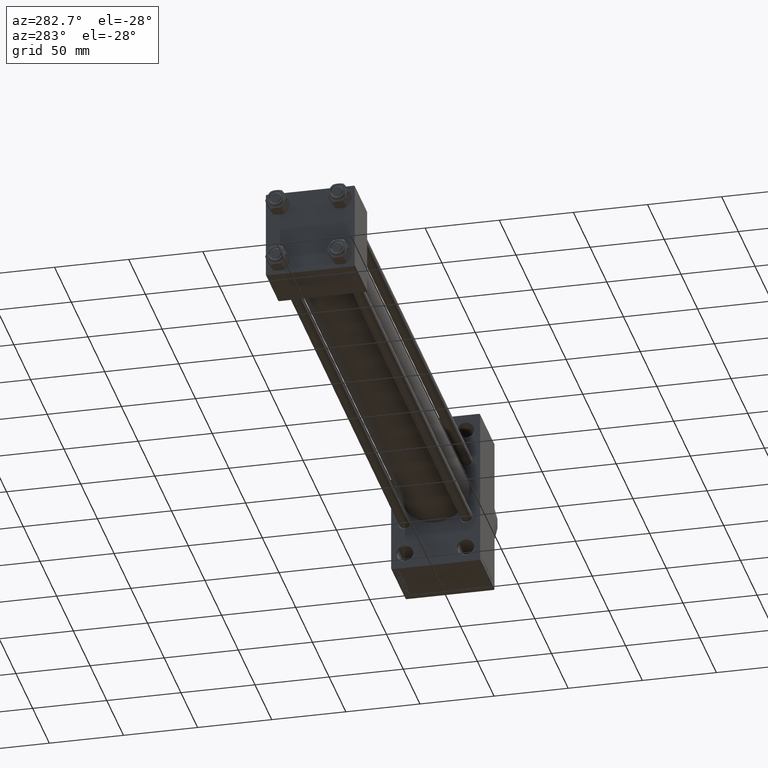
[diagram: clean part render]
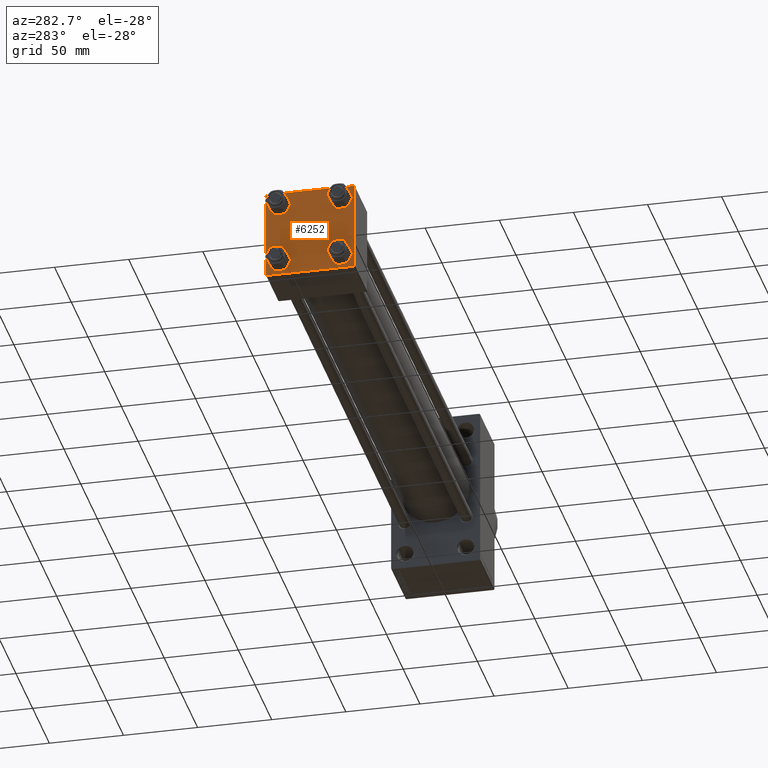
[diagram: same view with one face highlighted and labeled with its STEP entity id]
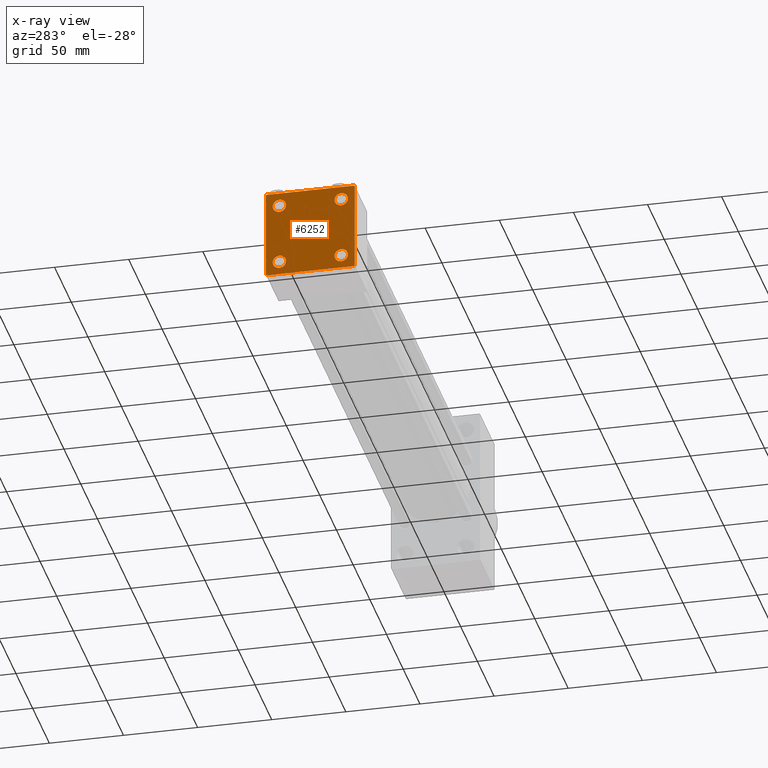
[diagram: x-ray of the same camera — body ghosted, the highlighted face saturated]
A machine part, auxiliary view. The second image highlights one B-rep face of the part: STEP entity #6252.
The next image is the same camera in x-ray: the body ghosted, the highlighted face saturated — about 0% of this face is hidden behind the body in this view.
In plain terms, the highlighted planar face has unit normal (-1, 0, 0).
Its self-contained STEP definition (entity closure, byte-faithful):
#474 = EDGE_CURVE ( 'NONE', #13095, #19065, #24075, .T. ) ;
#739 = FACE_BOUND ( 'NONE', #19890, .T. ) ;
#1247 = CARTESIAN_POINT ( 'NONE',  ( 0.000000000000000000, 29.99999999999999289, -29.50000000000000000 ) ) ;
#1392 = CARTESIAN_POINT ( 'NONE',  ( -0.000000000000000000, -29.74999999999999645, 29.74999999999999645 ) ) ;
#1527 = DIRECTION ( 'NONE',  ( 0.000000000000000000, 0.000000000000000000, 1.000000000000000000 ) ) ;
#1727 = VERTEX_POINT ( 'NONE', #40711 ) ;
#2076 = CARTESIAN_POINT ( 'NONE',  ( 0.000000000000000000, 20.84999999999999787, 25.35000000000001918 ) ) ;
#2084 = AXIS2_PLACEMENT_3D ( 'NONE', #18621, #15040, #11898 ) ;
#2979 = VECTOR ( 'NONE', #21318, 1000.000000000000000 ) ;
#3139 = VERTEX_POINT ( 'NONE', #18562 ) ;
#4204 = ORIENTED_EDGE ( 'NONE', *, *, #38496, .F. ) ;
#4324 = VERTEX_POINT ( 'NONE', #21632 ) ;
#4328 = EDGE_CURVE ( 'NONE', #28831, #29947, #43711, .T. ) ;
#4347 = DIRECTION ( 'NONE',  ( 0.000000000000000000, 0.000000000000000000, 1.000000000000000000 ) ) ;
#4837 = VERTEX_POINT ( 'NONE', #26815 ) ;
#5253 = DIRECTION ( 'NONE',  ( 0.000000000000000000, 0.7071067811865474617, -0.7071067811865474617 ) ) ;
#5520 = AXIS2_PLACEMENT_3D ( 'NONE', #8973, #41577, #1527 ) ;
#5568 = EDGE_CURVE ( 'NONE', #35027, #8611, #24133, .T. ) ;
#5754 = LINE ( 'NONE', #45317, #11878 ) ;
#5983 = CIRCLE ( 'NONE', #9006, 4.500000000000017764 ) ;
#6252 = ADVANCED_FACE ( 'NONE', ( #37199, #33598, #739, #15396, #29990 ), #44633, .T. ) ;
#7420 = CARTESIAN_POINT ( 'NONE',  ( 0.000000000000000000, 29.74999999999957723, -29.75000000000040501 ) ) ;
#7497 = DIRECTION ( 'NONE',  ( 1.000000000000000000, -0.000000000000000000, 0.000000000000000000 ) ) ;
#7696 = CARTESIAN_POINT ( 'NONE',  ( 0.000000000000000000, -20.84999999999999076, -25.35000000000002274 ) ) ;
#7869 = CARTESIAN_POINT ( 'NONE',  ( 0.000000000000000000, -30.00000000000000000, 29.99999999999999289 ) ) ;
#8016 = CIRCLE ( 'NONE', #30167, 4.500000000000017764 ) ;
#8198 = DIRECTION ( 'NONE',  ( -0.000000000000000000, 0.000000000000000000, 1.000000000000000000 ) ) ;
#8611 = VERTEX_POINT ( 'NONE', #17765 ) ;
#8973 = CARTESIAN_POINT ( 'NONE',  ( 0.000000000000000000, -20.84999999999999076, -20.85000000000000497 ) ) ;
#9006 = AXIS2_PLACEMENT_3D ( 'NONE', #44881, #26650, #26406 ) ;
#9096 = ORIENTED_EDGE ( 'NONE', *, *, #24281, .T. ) ;
#9265 = EDGE_CURVE ( 'NONE', #4837, #4324, #25087, .T. ) ;
#9669 = VERTEX_POINT ( 'NONE', #34572 ) ;
#11878 = VECTOR ( 'NONE', #30907, 1000.000000000000000 ) ;
#11898 = DIRECTION ( 'NONE',  ( 0.000000000000000000, 0.000000000000000000, 1.000000000000000000 ) ) ;
#12021 = DIRECTION ( 'NONE',  ( 1.000000000000000000, -0.000000000000000000, 0.000000000000000000 ) ) ;
#12249 = ORIENTED_EDGE ( 'NONE', *, *, #28912, .T. ) ;
#12278 = VECTOR ( 'NONE', #5253, 1000.000000000000114 ) ;
#13095 = VERTEX_POINT ( 'NONE', #29996 ) ;
#13445 = ORIENTED_EDGE ( 'NONE', *, *, #38589, .T. ) ;
#13853 = ORIENTED_EDGE ( 'NONE', *, *, #19632, .T. ) ;
#14068 = DIRECTION ( 'NONE',  ( 0.000000000000000000, -0.7071067811865474617, 0.7071067811865474617 ) ) ;
#14668 = ORIENTED_EDGE ( 'NONE', *, *, #47225, .T. ) ;
#14916 = CARTESIAN_POINT ( 'NONE',  ( 0.000000000000000000, 29.99999999999999289, 30.00000000000000000 ) ) ;
#15009 = CARTESIAN_POINT ( 'NONE',  ( 0.000000000000000000, 20.84999999999999787, -20.85000000000000142 ) ) ;
#15040 = DIRECTION ( 'NONE',  ( 1.000000000000000000, -0.000000000000000000, 0.000000000000000000 ) ) ;
#15071 = DIRECTION ( 'NONE',  ( 0.000000000000000000, 0.000000000000000000, -1.000000000000000000 ) ) ;
#15153 = CARTESIAN_POINT ( 'NONE',  ( 0.000000000000000000, 20.84999999999999787, 20.85000000000000142 ) ) ;
#15396 = FACE_BOUND ( 'NONE', #45162, .T. ) ;
#15956 = ORIENTED_EDGE ( 'NONE', *, *, #37825, .F. ) ;
#16785 = ORIENTED_EDGE ( 'NONE', *, *, #4328, .T. ) ;
#17427 = CARTESIAN_POINT ( 'NONE',  ( 0.000000000000000000, -29.75000000000001066, -29.75000000000001066 ) ) ;
#17765 = CARTESIAN_POINT ( 'NONE',  ( 0.000000000000000000, 20.84999999999999787, -16.34999999999998366 ) ) ;
#18456 = ORIENTED_EDGE ( 'NONE', *, *, #31777, .T. ) ;
#18562 = CARTESIAN_POINT ( 'NONE',  ( 0.000000000000000000, -20.84999999999999076, 16.34999999999998721 ) ) ;
#18621 = CARTESIAN_POINT ( 'NONE',  ( 0.000000000000000000, -20.84999999999999076, 20.85000000000000497 ) ) ;
#19065 = VERTEX_POINT ( 'NONE', #7696 ) ;
#19424 = ORIENTED_EDGE ( 'NONE', *, *, #5568, .T. ) ;
#19444 = AXIS2_PLACEMENT_3D ( 'NONE', #28212, #31789, #38760 ) ;
#19632 = EDGE_CURVE ( 'NONE', #19065, #13095, #26181, .T. ) ;
#19890 = EDGE_LOOP ( 'NONE', ( #12249, #19424 ) ) ;
#20905 = CARTESIAN_POINT ( 'NONE',  ( 0.000000000000000000, -30.00000000000000000, 29.49999999999999289 ) ) ;
#21318 = DIRECTION ( 'NONE',  ( 0.000000000000000000, -1.000000000000000000, -1.156482317317871725E-16 ) ) ;
#21632 = CARTESIAN_POINT ( 'NONE',  ( 0.000000000000000000, -30.00000000000000000, -29.50000000000001776 ) ) ;
#23622 = VECTOR ( 'NONE', #15071, 1000.000000000000000 ) ;
#23876 = VERTEX_POINT ( 'NONE', #45166 ) ;
#24075 = CIRCLE ( 'NONE', #19444, 4.500000000000017764 ) ;
#24133 = CIRCLE ( 'NONE', #31784, 4.500000000000017764 ) ;
#24281 = EDGE_CURVE ( 'NONE', #39494, #28691, #8016, .T. ) ;
#25087 = LINE ( 'NONE', #17427, #41852 ) ;
#25386 = DIRECTION ( 'NONE',  ( -0.000000000000000000, -0.7071067811865574537, -0.7071067811865376918 ) ) ;
#25605 = EDGE_LOOP ( 'NONE', ( #34767, #35656 ) ) ;
#26099 = CARTESIAN_POINT ( 'NONE',  ( 0.000000000000000000, 20.84999999999999787, -20.85000000000000142 ) ) ;
#26135 = EDGE_CURVE ( 'NONE', #1727, #4837, #5754, .T. ) ;
#26181 = CIRCLE ( 'NONE', #5520, 4.500000000000017764 ) ;
#26383 = DIRECTION ( 'NONE',  ( 0.000000000000000000, 0.000000000000000000, 1.000000000000000000 ) ) ;
#26406 = DIRECTION ( 'NONE',  ( 0.000000000000000000, 0.000000000000000000, 1.000000000000000000 ) ) ;
#26488 = DIRECTION ( 'NONE',  ( 0.000000000000000000, 0.000000000000000000, 1.000000000000000000 ) ) ;
#26650 = DIRECTION ( 'NONE',  ( 1.000000000000000000, -0.000000000000000000, 0.000000000000000000 ) ) ;
#26815 = CARTESIAN_POINT ( 'NONE',  ( 0.000000000000000000, -29.50000000000000000, -30.00000000000000711 ) ) ;
#27766 = VERTEX_POINT ( 'NONE', #32803 ) ;
#28037 = VECTOR ( 'NONE', #36260, 1000.000000000000000 ) ;
#28093 = ORIENTED_EDGE ( 'NONE', *, *, #474, .T. ) ;
#28212 = CARTESIAN_POINT ( 'NONE',  ( 0.000000000000000000, -20.84999999999999076, -20.85000000000000497 ) ) ;
#28642 = ORIENTED_EDGE ( 'NONE', *, *, #9265, .T. ) ;
#28691 = VERTEX_POINT ( 'NONE', #2076 ) ;
#28831 = VERTEX_POINT ( 'NONE', #29372 ) ;
#28912 = EDGE_CURVE ( 'NONE', #8611, #35027, #38798, .T. ) ;
#29311 = VERTEX_POINT ( 'NONE', #20905 ) ;
#29372 = CARTESIAN_POINT ( 'NONE',  ( 0.000000000000000000, 29.99999999999999289, 29.50000000000000000 ) ) ;
#29844 = DIRECTION ( 'NONE',  ( 1.000000000000000000, -0.000000000000000000, 0.000000000000000000 ) ) ;
#29947 = VERTEX_POINT ( 'NONE', #1247 ) ;
#29990 = FACE_OUTER_BOUND ( 'NONE', #40640, .T. ) ;
#29996 = CARTESIAN_POINT ( 'NONE',  ( 0.000000000000000000, -20.84999999999999076, -16.34999999999998721 ) ) ;
#30167 = AXIS2_PLACEMENT_3D ( 'NONE', #15153, #12021, #4347 ) ;
#30456 = CARTESIAN_POINT ( 'NONE',  ( 0.000000000000000000, 20.84999999999999787, 20.85000000000000142 ) ) ;
#30907 = DIRECTION ( 'NONE',  ( 0.000000000000000000, -1.000000000000000000, -1.156482317317871725E-16 ) ) ;
#31129 = LINE ( 'NONE', #1392, #32622 ) ;
#31170 = CIRCLE ( 'NONE', #2084, 4.500000000000017764 ) ;
#31777 = EDGE_CURVE ( 'NONE', #29311, #23876, #31129, .T. ) ;
#31784 = AXIS2_PLACEMENT_3D ( 'NONE', #26099, #33294, #40729 ) ;
#31789 = DIRECTION ( 'NONE',  ( 1.000000000000000000, -0.000000000000000000, 0.000000000000000000 ) ) ;
#31810 = CIRCLE ( 'NONE', #38700, 4.500000000000017764 ) ;
#32463 = EDGE_LOOP ( 'NONE', ( #28093, #13853 ) ) ;
#32573 = AXIS2_PLACEMENT_3D ( 'NONE', #37438, #41033, #8198 ) ;
#32622 = VECTOR ( 'NONE', #38813, 1000.000000000000114 ) ;
#32803 = CARTESIAN_POINT ( 'NONE',  ( 0.000000000000000000, 29.49999999999999289, 30.00000000000000000 ) ) ;
#33294 = DIRECTION ( 'NONE',  ( 1.000000000000000000, -0.000000000000000000, 0.000000000000000000 ) ) ;
#33407 = AXIS2_PLACEMENT_3D ( 'NONE', #15009, #29844, #26488 ) ;
#33598 = FACE_BOUND ( 'NONE', #32463, .T. ) ;
#33798 = ORIENTED_EDGE ( 'NONE', *, *, #26135, .T. ) ;
#34201 = EDGE_CURVE ( 'NONE', #9669, #3139, #31170, .T. ) ;
#34572 = CARTESIAN_POINT ( 'NONE',  ( 0.000000000000000000, -20.84999999999999076, 25.35000000000002274 ) ) ;
#34767 = ORIENTED_EDGE ( 'NONE', *, *, #34201, .T. ) ;
#35027 = VERTEX_POINT ( 'NONE', #46731 ) ;
#35656 = ORIENTED_EDGE ( 'NONE', *, *, #35849, .T. ) ;
#35849 = EDGE_CURVE ( 'NONE', #3139, #9669, #5983, .T. ) ;
#36260 = DIRECTION ( 'NONE',  ( 0.000000000000000000, 0.000000000000000000, -1.000000000000000000 ) ) ;
#36667 = VECTOR ( 'NONE', #25386, 999.9999999999998863 ) ;
#37017 = ORIENTED_EDGE ( 'NONE', *, *, #42524, .T. ) ;
#37199 = FACE_BOUND ( 'NONE', #25605, .T. ) ;
#37438 = CARTESIAN_POINT ( 'NONE',  ( 0.000000000000000000, 0.000000000000000000, 0.000000000000000000 ) ) ;
#37627 = LINE ( 'NONE', #44589, #12278 ) ;
#37825 = EDGE_CURVE ( 'NONE', #29311, #4324, #40710, .T. ) ;
#38496 = EDGE_CURVE ( 'NONE', #27766, #23876, #39784, .T. ) ;
#38589 = EDGE_CURVE ( 'NONE', #29947, #1727, #43625, .T. ) ;
#38700 = AXIS2_PLACEMENT_3D ( 'NONE', #30456, #7497, #26383 ) ;
#38760 = DIRECTION ( 'NONE',  ( 0.000000000000000000, 0.000000000000000000, 1.000000000000000000 ) ) ;
#38798 = CIRCLE ( 'NONE', #33407, 4.500000000000017764 ) ;
#38813 = DIRECTION ( 'NONE',  ( -0.000000000000000000, 0.7071067811865474617, 0.7071067811865474617 ) ) ;
#39494 = VERTEX_POINT ( 'NONE', #47188 ) ;
#39784 = LINE ( 'NONE', #46759, #2979 ) ;
#40640 = EDGE_LOOP ( 'NONE', ( #16785, #13445, #33798, #28642, #15956, #18456, #4204, #37017 ) ) ;
#40710 = LINE ( 'NONE', #7869, #23622 ) ;
#40711 = CARTESIAN_POINT ( 'NONE',  ( 0.000000000000000000, 29.49999999999997868, -30.00000000000000000 ) ) ;
#40729 = DIRECTION ( 'NONE',  ( 0.000000000000000000, 0.000000000000000000, 1.000000000000000000 ) ) ;
#41033 = DIRECTION ( 'NONE',  ( -1.000000000000000000, 0.000000000000000000, -0.000000000000000000 ) ) ;
#41577 = DIRECTION ( 'NONE',  ( 1.000000000000000000, -0.000000000000000000, 0.000000000000000000 ) ) ;
#41852 = VECTOR ( 'NONE', #14068, 1000.000000000000114 ) ;
#42524 = EDGE_CURVE ( 'NONE', #27766, #28831, #37627, .T. ) ;
#43625 = LINE ( 'NONE', #7420, #36667 ) ;
#43711 = LINE ( 'NONE', #14916, #28037 ) ;
#44589 = CARTESIAN_POINT ( 'NONE',  ( 0.000000000000000000, 29.74999999999999645, 29.74999999999999645 ) ) ;
#44633 = PLANE ( 'NONE',  #32573 ) ;
#44881 = CARTESIAN_POINT ( 'NONE',  ( 0.000000000000000000, -20.84999999999999076, 20.85000000000000497 ) ) ;
#45162 = EDGE_LOOP ( 'NONE', ( #14668, #9096 ) ) ;
#45166 = CARTESIAN_POINT ( 'NONE',  ( 0.000000000000000000, -29.49999999999998579, 29.99999999999999289 ) ) ;
#45317 = CARTESIAN_POINT ( 'NONE',  ( 0.000000000000000000, 29.99999999999999289, -30.00000000000000000 ) ) ;
#46731 = CARTESIAN_POINT ( 'NONE',  ( 0.000000000000000000, 20.84999999999999787, -25.35000000000001918 ) ) ;
#46759 = CARTESIAN_POINT ( 'NONE',  ( 0.000000000000000000, 29.99999999999999289, 30.00000000000000000 ) ) ;
#47188 = CARTESIAN_POINT ( 'NONE',  ( 0.000000000000000000, 20.84999999999999787, 16.34999999999998366 ) ) ;
#47225 = EDGE_CURVE ( 'NONE', #28691, #39494, #31810, .T. ) ;